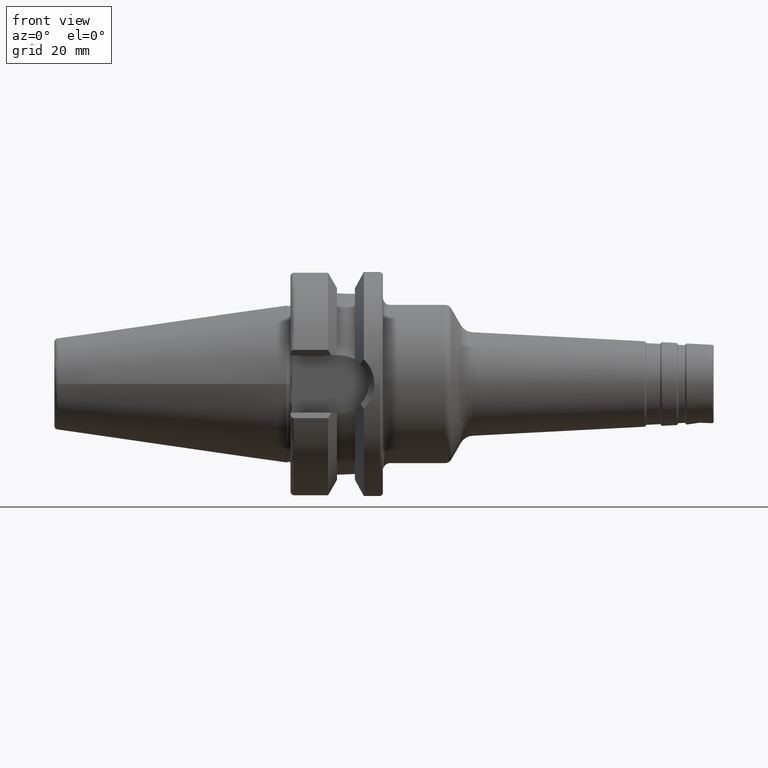
[diagram: clean part render]
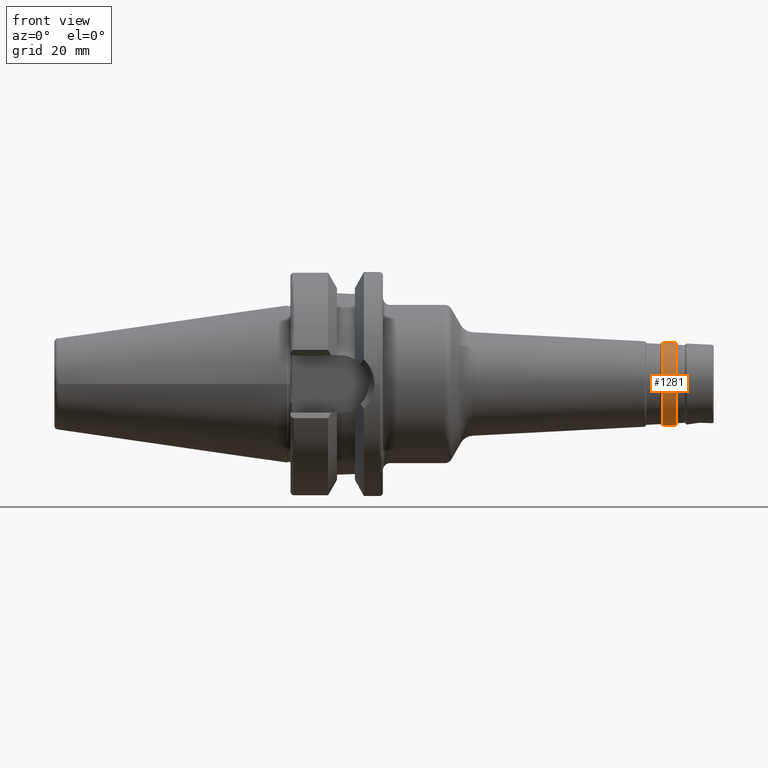
[diagram: same view with one face highlighted and labeled with its STEP entity id]
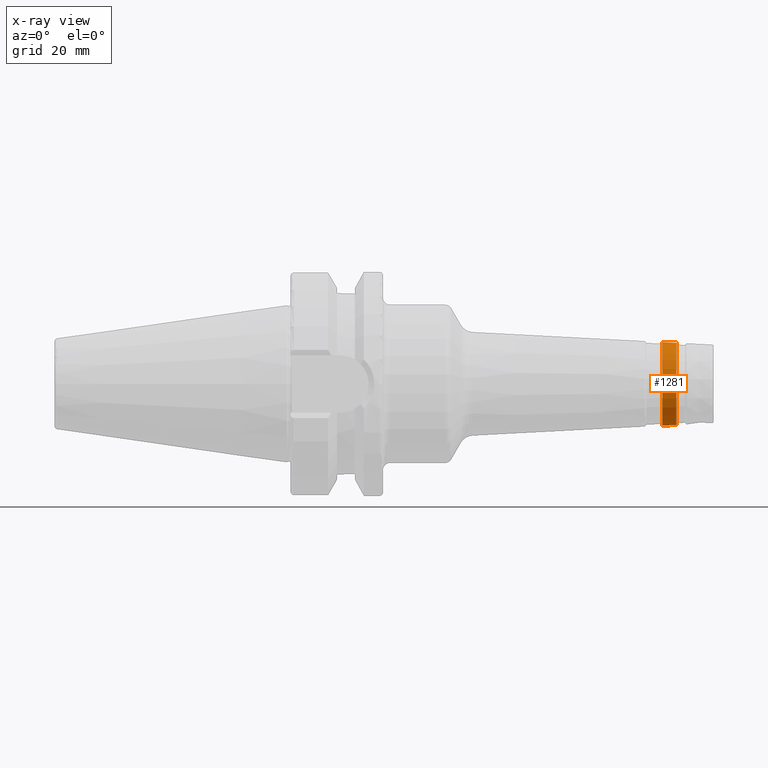
[diagram: x-ray of the same camera — body ghosted, the highlighted face saturated]
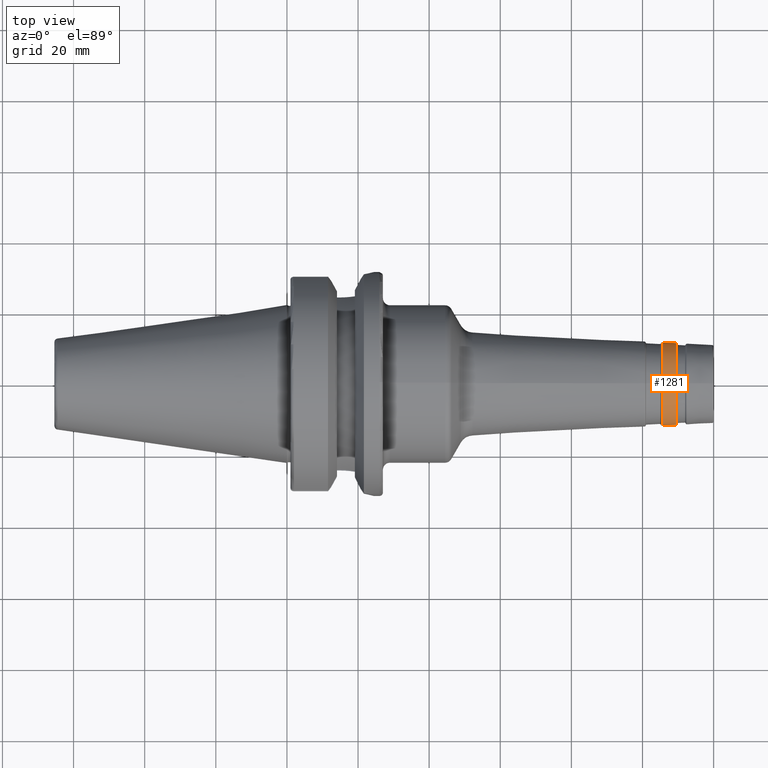
[diagram: same view with one face highlighted and labeled with its STEP entity id]
A machine part, front view. The second image highlights one B-rep face of the part: STEP entity #1281.
The next image is the same camera in x-ray: the body ghosted, the highlighted face saturated — about 0% of this face is hidden behind the body in this view.
A second angle (top view) of the same face is appended — the face is thin or edge-on in the first view.
In plain terms, the highlighted conical surface has half-angle 3 deg.
Its self-contained STEP definition (entity closure, byte-faithful):
#106=LINE('',#2045,#177);
#177=VECTOR('',#1644,11.6534026317359);
#248=CONICAL_SURFACE('',#1413,11.6534026317359,0.0523598775598293);
#277=FACE_OUTER_BOUND('',#360,.T.);
#360=EDGE_LOOP('',(#913,#914,#915,#916));
#458=CIRCLE('',#1412,11.5497573017112);
#459=CIRCLE('',#1414,11.7570479617606);
#546=VERTEX_POINT('',#2040);
#547=VERTEX_POINT('',#2044);
#684=EDGE_CURVE('',#546,#546,#458,.T.);
#685=EDGE_CURVE('',#546,#547,#106,.T.);
#686=EDGE_CURVE('',#547,#547,#459,.T.);
#913=ORIENTED_EDGE('',*,*,#684,.F.);
#914=ORIENTED_EDGE('',*,*,#685,.T.);
#915=ORIENTED_EDGE('',*,*,#686,.F.);
#916=ORIENTED_EDGE('',*,*,#685,.F.);
#1281=ADVANCED_FACE('',(#277),#248,.T.);
#1412=AXIS2_PLACEMENT_3D('',#2042,#1640,#1641);
#1413=AXIS2_PLACEMENT_3D('',#2043,#1642,#1643);
#1414=AXIS2_PLACEMENT_3D('',#2046,#1645,#1646);
#1640=DIRECTION('center_axis',(1.,0.,0.));
#1641=DIRECTION('ref_axis',(0.,0.,1.));
#1642=DIRECTION('center_axis',(-1.,0.,0.));
#1643=DIRECTION('ref_axis',(0.,0.,-1.));
#1644=DIRECTION('',(-0.998629534754574,-6.40930612932364E-18,0.0523359562429432));
#1645=DIRECTION('center_axis',(-1.,0.,0.));
#1646=DIRECTION('ref_axis',(0.,-2.09677662014615E-32,1.));
#2040=CARTESIAN_POINT('',(109.510005780972,-1.41443733104694E-15,11.5497573017112));
#2042=CARTESIAN_POINT('Origin',(109.510005780972,-1.41443733104694E-15,
0.));
#2043=CARTESIAN_POINT('Origin',(107.532335071726,0.,0.));
#2044=CARTESIAN_POINT('',(105.55466436248,-1.43982311537921E-15,11.7570479617606));
#2045=CARTESIAN_POINT('',(107.532335071726,-1.42713022321307E-15,11.6534026317359));
#2046=CARTESIAN_POINT('Origin',(105.55466436248,-1.4398231153792E-15,0.));